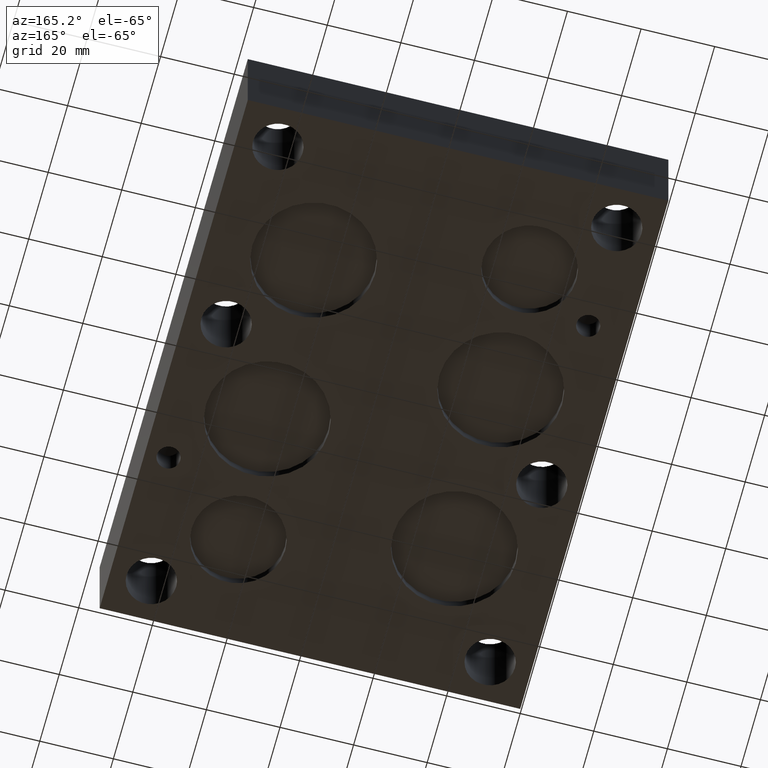
[diagram: clean part render]
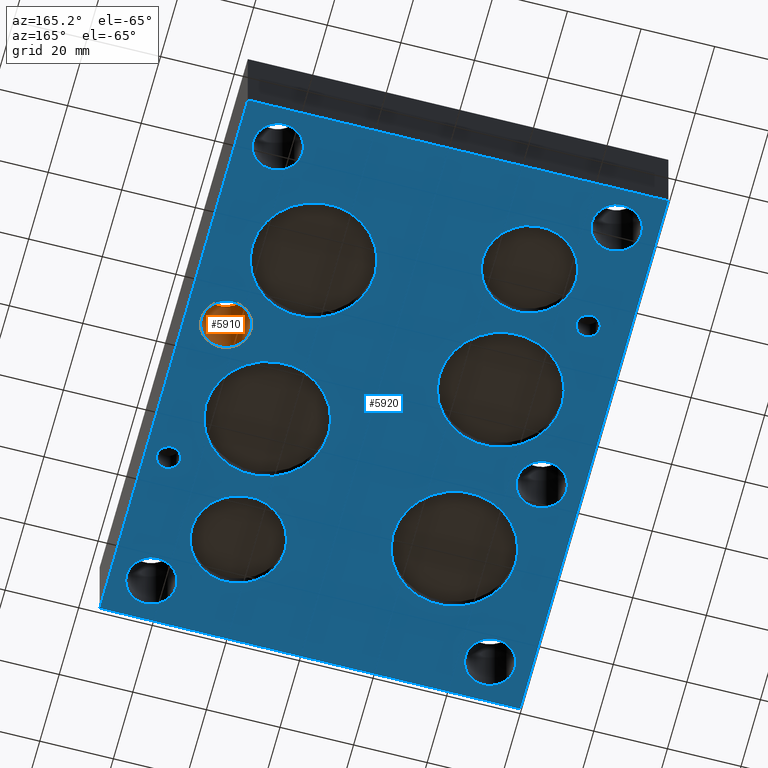
[diagram: same view with the hole feature highlighted: cylindrical wall and planar end face, labeled with their STEP entity ids]
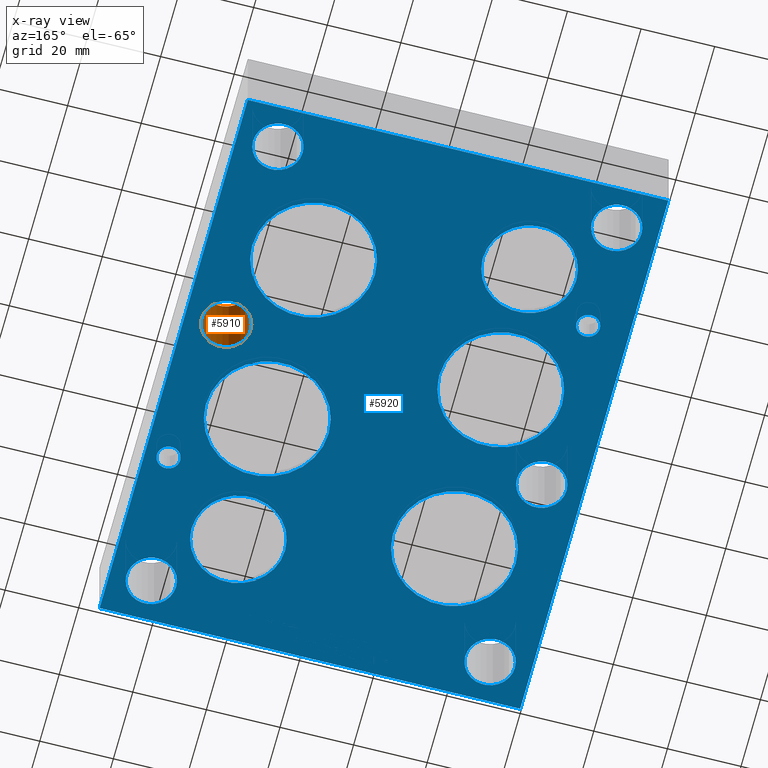
[diagram: x-ray of the same camera — body ghosted, the hole faces saturated]
A machine part, auxiliary view. The highlighted faces form one hole feature of diameter 13.4874 mm: the cylindrical wall (entity #5910, orange) and its adjacent planar end face (entity #5920, blue) — they share a circular edge in the B-rep.
The next image is the same camera in x-ray (body ghosted, the hole faces saturated) — the bore reads through the body.
Wall:
#34=CIRCLE('',#6165,6.7437);
#35=CIRCLE('',#6166,6.7437);
#53=CYLINDRICAL_SURFACE('',#6164,6.7437);
#599=FACE_OUTER_BOUND('',#925,.T.);
#925=EDGE_LOOP('',(#5213,#5214,#5215,#5216));
#1557=LINE('',#9920,#2171);
#2171=VECTOR('',#7250,6.7437);
#2862=VERTEX_POINT('',#9917);
#2863=VERTEX_POINT('',#9919);
#3653=EDGE_CURVE('',#2862,#2862,#34,.T.);
#3654=EDGE_CURVE('',#2862,#2863,#1557,.T.);
#3655=EDGE_CURVE('',#2863,#2863,#35,.T.);
#5213=ORIENTED_EDGE('',*,*,#3653,.F.);
#5214=ORIENTED_EDGE('',*,*,#3654,.T.);
#5215=ORIENTED_EDGE('',*,*,#3655,.F.);
#5216=ORIENTED_EDGE('',*,*,#3654,.F.);
#5910=ADVANCED_FACE('',(#599),#53,.F.);
#6164=AXIS2_PLACEMENT_3D('',#9916,#7246,#7247);
#6165=AXIS2_PLACEMENT_3D('',#9918,#7248,#7249);
#6166=AXIS2_PLACEMENT_3D('',#9921,#7251,#7252);
#7246=DIRECTION('center_axis',(0.,0.,-1.));
#7247=DIRECTION('ref_axis',(1.,0.,0.));
#7248=DIRECTION('center_axis',(0.,0.,1.));
#7249=DIRECTION('ref_axis',(1.,0.,0.));
#7250=DIRECTION('',(0.,0.,1.));
#7251=DIRECTION('center_axis',(0.,0.,-1.));
#7252=DIRECTION('ref_axis',(1.,0.,0.));
#9916=CARTESIAN_POINT('Origin',(103.2002,88.0872,192.185873570354));
#9917=CARTESIAN_POINT('',(96.4565,88.0872,0.));
#9918=CARTESIAN_POINT('Origin',(103.2002,88.0872,0.));
#9919=CARTESIAN_POINT('',(96.4565,88.0872,25.4));
#9920=CARTESIAN_POINT('',(96.4565,88.0872,192.185873570354));
#9921=CARTESIAN_POINT('Origin',(103.2002,88.0872,25.4));
End face:
#16=CIRCLE('',#6130,12.7);
#18=CIRCLE('',#6134,12.7);
#20=CIRCLE('',#6138,16.6751);
#22=CIRCLE('',#6142,16.6751);
#24=CIRCLE('',#6146,16.6751);
#26=CIRCLE('',#6150,16.6751);
#29=CIRCLE('',#6156,3.175);
#31=CIRCLE('',#6160,3.175);
#32=CIRCLE('',#6162,6.7437);
#34=CIRCLE('',#6165,6.7437);
#36=CIRCLE('',#6168,6.7437);
#38=CIRCLE('',#6171,6.7437);
#40=CIRCLE('',#6174,6.7437);
#42=CIRCLE('',#6177,6.7437);
#89=FACE_BOUND('',#942,.T.);
#90=FACE_BOUND('',#943,.T.);
#91=FACE_BOUND('',#944,.T.);
#92=FACE_BOUND('',#945,.T.);
#93=FACE_BOUND('',#946,.T.);
#94=FACE_BOUND('',#947,.T.);
#95=FACE_BOUND('',#948,.T.);
#96=FACE_BOUND('',#949,.T.);
#97=FACE_BOUND('',#950,.T.);
#98=FACE_BOUND('',#951,.T.);
#99=FACE_BOUND('',#952,.T.);
#100=FACE_BOUND('',#953,.T.);
#101=FACE_BOUND('',#954,.T.);
#102=FACE_BOUND('',#955,.T.);
#308=PLANE('',#6184);
#609=FACE_OUTER_BOUND('',#941,.T.);
#941=EDGE_LOOP('',(#5258,#5259,#5260,#5261));
#942=EDGE_LOOP('',(#5262));
#943=EDGE_LOOP('',(#5263));
#944=EDGE_LOOP('',(#5264));
#945=EDGE_LOOP('',(#5265));
#946=EDGE_LOOP('',(#5266));
#947=EDGE_LOOP('',(#5267));
#948=EDGE_LOOP('',(#5268));
#949=EDGE_LOOP('',(#5269));
#950=EDGE_LOOP('',(#5270));
#951=EDGE_LOOP('',(#5271));
#952=EDGE_LOOP('',(#5272));
#953=EDGE_LOOP('',(#5273));
#954=EDGE_LOOP('',(#5274));
#955=EDGE_LOOP('',(#5275));
#1165=LINE('',#8937,#1779);
#1562=LINE('',#9948,#2176);
#1565=LINE('',#9954,#2179);
#1568=LINE('',#9959,#2182);
#1779=VECTOR('',#6504,10.);
#2176=VECTOR('',#7283,10.);
#2179=VECTOR('',#7288,10.);
#2182=VECTOR('',#7293,10.);
#2576=VERTEX_POINT('',#8935);
#2577=VERTEX_POINT('',#8936);
#2842=VERTEX_POINT('',#9851);
#2844=VERTEX_POINT('',#9858);
#2846=VERTEX_POINT('',#9865);
#2848=VERTEX_POINT('',#9872);
#2850=VERTEX_POINT('',#9879);
#2852=VERTEX_POINT('',#9886);
#2856=VERTEX_POINT('',#9898);
#2859=VERTEX_POINT('',#9907);
#2860=VERTEX_POINT('',#9911);
#2862=VERTEX_POINT('',#9917);
#2864=VERTEX_POINT('',#9923);
#2866=VERTEX_POINT('',#9929);
#2868=VERTEX_POINT('',#9935);
#2870=VERTEX_POINT('',#9941);
#2872=VERTEX_POINT('',#9947);
#2874=VERTEX_POINT('',#9953);
#3227=EDGE_CURVE('',#2576,#2577,#1165,.T.);
#3624=EDGE_CURVE('',#2842,#2842,#16,.T.);
#3627=EDGE_CURVE('',#2844,#2844,#18,.T.);
#3630=EDGE_CURVE('',#2846,#2846,#20,.T.);
#3633=EDGE_CURVE('',#2848,#2848,#22,.T.);
#3636=EDGE_CURVE('',#2850,#2850,#24,.T.);
#3639=EDGE_CURVE('',#2852,#2852,#26,.T.);
#3644=EDGE_CURVE('',#2856,#2856,#29,.T.);
#3648=EDGE_CURVE('',#2859,#2859,#31,.T.);
#3650=EDGE_CURVE('',#2860,#2860,#32,.T.);
#3653=EDGE_CURVE('',#2862,#2862,#34,.T.);
#3656=EDGE_CURVE('',#2864,#2864,#36,.T.);
#3659=EDGE_CURVE('',#2866,#2866,#38,.T.);
#3662=EDGE_CURVE('',#2868,#2868,#40,.T.);
#3665=EDGE_CURVE('',#2870,#2870,#42,.T.);
#3668=EDGE_CURVE('',#2872,#2576,#1562,.T.);
#3671=EDGE_CURVE('',#2874,#2872,#1565,.T.);
#3674=EDGE_CURVE('',#2577,#2874,#1568,.T.);
#5258=ORIENTED_EDGE('',*,*,#3227,.F.);
#5259=ORIENTED_EDGE('',*,*,#3668,.F.);
#5260=ORIENTED_EDGE('',*,*,#3671,.F.);
#5261=ORIENTED_EDGE('',*,*,#3674,.F.);
#5262=ORIENTED_EDGE('',*,*,#3624,.T.);
#5263=ORIENTED_EDGE('',*,*,#3627,.T.);
#5264=ORIENTED_EDGE('',*,*,#3630,.T.);
#5265=ORIENTED_EDGE('',*,*,#3633,.T.);
#5266=ORIENTED_EDGE('',*,*,#3636,.T.);
#5267=ORIENTED_EDGE('',*,*,#3639,.T.);
#5268=ORIENTED_EDGE('',*,*,#3644,.T.);
#5269=ORIENTED_EDGE('',*,*,#3648,.T.);
#5270=ORIENTED_EDGE('',*,*,#3650,.T.);
#5271=ORIENTED_EDGE('',*,*,#3653,.T.);
#5272=ORIENTED_EDGE('',*,*,#3656,.T.);
#5273=ORIENTED_EDGE('',*,*,#3659,.T.);
#5274=ORIENTED_EDGE('',*,*,#3662,.T.);
#5275=ORIENTED_EDGE('',*,*,#3665,.T.);
#5920=ADVANCED_FACE('',(#609,#89,#90,#91,#92,#93,#94,#95,#96,#97,#98,#99,
#100,#101,#102),#308,.F.);
#6130=AXIS2_PLACEMENT_3D('',#9852,#7167,#7168);
#6134=AXIS2_PLACEMENT_3D('',#9859,#7176,#7177);
#6138=AXIS2_PLACEMENT_3D('',#9866,#7185,#7186);
#6142=AXIS2_PLACEMENT_3D('',#9873,#7194,#7195);
#6146=AXIS2_PLACEMENT_3D('',#9880,#7203,#7204);
#6150=AXIS2_PLACEMENT_3D('',#9887,#7212,#7213);
#6156=AXIS2_PLACEMENT_3D('',#9899,#7226,#7227);
#6160=AXIS2_PLACEMENT_3D('',#9908,#7236,#7237);
#6162=AXIS2_PLACEMENT_3D('',#9912,#7241,#7242);
#6165=AXIS2_PLACEMENT_3D('',#9918,#7248,#7249);
#6168=AXIS2_PLACEMENT_3D('',#9924,#7255,#7256);
#6171=AXIS2_PLACEMENT_3D('',#9930,#7262,#7263);
#6174=AXIS2_PLACEMENT_3D('',#9936,#7269,#7270);
#6177=AXIS2_PLACEMENT_3D('',#9942,#7276,#7277);
#6184=AXIS2_PLACEMENT_3D('',#9963,#7299,#7300);
#6504=DIRECTION('',(1.,0.,0.));
#7167=DIRECTION('center_axis',(0.,0.,1.));
#7168=DIRECTION('ref_axis',(1.,0.,0.));
#7176=DIRECTION('center_axis',(0.,0.,1.));
#7177=DIRECTION('ref_axis',(1.,0.,0.));
#7185=DIRECTION('center_axis',(0.,0.,1.));
#7186=DIRECTION('ref_axis',(1.,0.,0.));
#7194=DIRECTION('center_axis',(0.,0.,1.));
#7195=DIRECTION('ref_axis',(1.,0.,0.));
#7203=DIRECTION('center_axis',(0.,0.,1.));
#7204=DIRECTION('ref_axis',(1.,0.,0.));
#7212=DIRECTION('center_axis',(0.,0.,1.));
#7213=DIRECTION('ref_axis',(1.,0.,0.));
#7226=DIRECTION('center_axis',(0.,0.,1.));
#7227=DIRECTION('ref_axis',(1.,0.,0.));
#7236=DIRECTION('center_axis',(0.,0.,1.));
#7237=DIRECTION('ref_axis',(1.,0.,0.));
#7241=DIRECTION('center_axis',(0.,0.,1.));
#7242=DIRECTION('ref_axis',(1.,0.,0.));
#7248=DIRECTION('center_axis',(0.,0.,1.));
#7249=DIRECTION('ref_axis',(1.,0.,0.));
#7255=DIRECTION('center_axis',(0.,0.,1.));
#7256=DIRECTION('ref_axis',(1.,0.,0.));
#7262=DIRECTION('center_axis',(0.,0.,1.));
#7263=DIRECTION('ref_axis',(1.,0.,0.));
#7269=DIRECTION('center_axis',(0.,0.,1.));
#7270=DIRECTION('ref_axis',(1.,0.,0.));
#7276=DIRECTION('center_axis',(0.,0.,1.));
#7277=DIRECTION('ref_axis',(1.,0.,0.));
#7283=DIRECTION('',(0.,-1.,0.));
#7288=DIRECTION('',(-1.,0.,0.));
#7293=DIRECTION('',(0.,1.,0.));
#7299=DIRECTION('center_axis',(0.,0.,1.));
#7300=DIRECTION('ref_axis',(1.,0.,0.));
#8935=CARTESIAN_POINT('',(0.,0.,0.));
#8936=CARTESIAN_POINT('',(114.3,0.,0.));
#8937=CARTESIAN_POINT('',(0.,0.,0.));
#9851=CARTESIAN_POINT('',(17.4752,123.825,0.));
#9852=CARTESIAN_POINT('Origin',(30.1752,123.825,0.));
#9858=CARTESIAN_POINT('',(71.4502,28.575,0.));
#9859=CARTESIAN_POINT('Origin',(84.1502,28.575,0.));
#9865=CARTESIAN_POINT('',(11.8999,88.1126,0.));
#9866=CARTESIAN_POINT('Origin',(28.575,88.1126,0.));
#9872=CARTESIAN_POINT('',(69.0499,64.2874,0.));
#9873=CARTESIAN_POINT('Origin',(85.725,64.2874,0.));
#9879=CARTESIAN_POINT('',(69.0499,111.9124,0.));
#9880=CARTESIAN_POINT('Origin',(85.725,111.9124,0.));
#9886=CARTESIAN_POINT('',(11.8999,40.4622,0.));
#9887=CARTESIAN_POINT('Origin',(28.575,40.4622,0.));
#9898=CARTESIAN_POINT('',(7.9248,111.9124,0.));
#9899=CARTESIAN_POINT('Origin',(11.0998,111.9124,0.));
#9907=CARTESIAN_POINT('',(104.775,46.8376,0.));
#9908=CARTESIAN_POINT('Origin',(107.95,46.8376,0.));
#9911=CARTESIAN_POINT('',(4.3688,11.0998,0.));
#9912=CARTESIAN_POINT('Origin',(11.1125,11.0998,0.));
#9917=CARTESIAN_POINT('',(96.4565,88.0872,0.));
#9918=CARTESIAN_POINT('Origin',(103.2002,88.0872,0.));
#9923=CARTESIAN_POINT('',(4.3561,141.2748,0.));
#9924=CARTESIAN_POINT('Origin',(11.0998,141.2748,0.));
#9929=CARTESIAN_POINT('',(96.4438,141.26972,0.));
#9930=CARTESIAN_POINT('Origin',(103.1875,141.26972,0.));
#9935=CARTESIAN_POINT('',(96.4438,11.0998,0.));
#9936=CARTESIAN_POINT('Origin',(103.1875,11.0998,0.));
#9941=CARTESIAN_POINT('',(4.3815,64.2874,0.));
#9942=CARTESIAN_POINT('Origin',(11.1252,64.2874,0.));
#9947=CARTESIAN_POINT('',(0.,152.4,0.));
#9948=CARTESIAN_POINT('',(0.,152.4,0.));
#9953=CARTESIAN_POINT('',(114.3,152.4,0.));
#9954=CARTESIAN_POINT('',(114.3,152.4,0.));
#9959=CARTESIAN_POINT('',(114.3,0.,0.));
#9963=CARTESIAN_POINT('Origin',(57.15,76.2,0.));